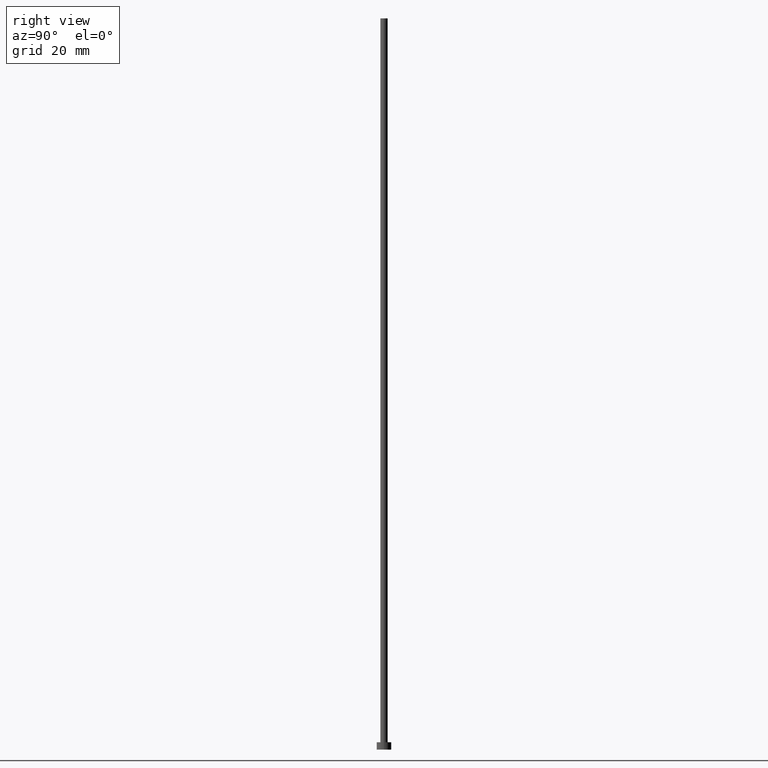
[diagram: clean part render]
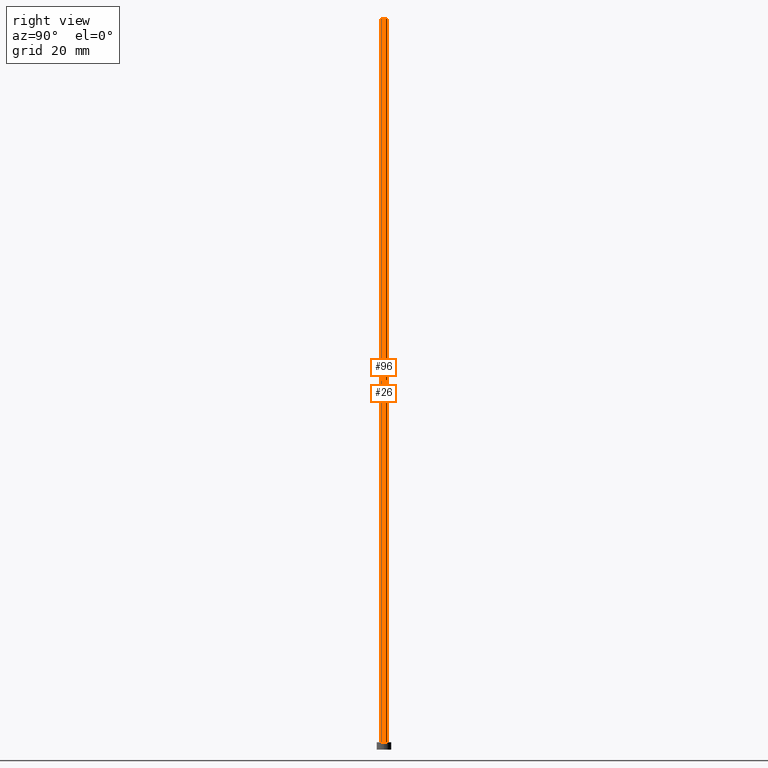
[diagram: same view with one multi-face feature highlighted, each face labeled with its STEP entity id]
A machine part, right view. The highlighted faces form ONE feature: a constant-radius fillet chain: 2 tangent blend faces with common blend radius 1 mm. The faces share edges in the B-rep.
Their STEP definitions:
[1] entity #26 (Cylinder):
#2 = EDGE_CURVE ( 'NONE', #128, #109, #250, .T. ) ;
#8 = VERTEX_POINT ( 'NONE', #203 ) ;
#17 = VECTOR ( 'NONE', #243, 1000.000000000000000 ) ;
#18 = CARTESIAN_POINT ( 'NONE',  ( 1.000000000000000000, 1.224646799147353207E-16, 200.0000000000000000 ) ) ;
#26 = ADVANCED_FACE ( 'NONE', ( #186 ), #57, .T. ) ;
#31 = ORIENTED_EDGE ( 'NONE', *, *, #227, .T. ) ;
#46 = LINE ( 'NONE', #83, #17 ) ;
#57 = CYLINDRICAL_SURFACE ( 'NONE', #89, 1.000000000000000000 ) ;
#61 = DIRECTION ( 'NONE',  ( -0.000000000000000000, -0.000000000000000000, -1.000000000000000000 ) ) ;
#78 = EDGE_CURVE ( 'NONE', #109, #8, #188, .T. ) ;
#79 = DIRECTION ( 'NONE',  ( -0.000000000000000000, -0.000000000000000000, -1.000000000000000000 ) ) ;
#80 = AXIS2_PLACEMENT_3D ( 'NONE', #171, #143, #160 ) ;
#83 = CARTESIAN_POINT ( 'NONE',  ( 1.000000000000000000, 1.224646799147353207E-16, 200.0000000000000000 ) ) ;
#84 = DIRECTION ( 'NONE',  ( -1.000000000000000000, 0.000000000000000000, 0.000000000000000000 ) ) ;
#89 = AXIS2_PLACEMENT_3D ( 'NONE', #102, #79, #84 ) ;
#97 = ORIENTED_EDGE ( 'NONE', *, *, #213, .T. ) ;
#102 = CARTESIAN_POINT ( 'NONE',  ( 0.000000000000000000, 0.000000000000000000, 200.0000000000000000 ) ) ;
#109 = VERTEX_POINT ( 'NONE', #142 ) ;
#112 = DIRECTION ( 'NONE',  ( 0.000000000000000000, 0.000000000000000000, 1.000000000000000000 ) ) ;
#128 = VERTEX_POINT ( 'NONE', #18 ) ;
#142 = CARTESIAN_POINT ( 'NONE',  ( -1.000000000000000000, 0.000000000000000000, 200.0000000000000000 ) ) ;
#143 = DIRECTION ( 'NONE',  ( 0.000000000000000000, 0.000000000000000000, 1.000000000000000000 ) ) ;
#160 = DIRECTION ( 'NONE',  ( 1.000000000000000000, 0.000000000000000000, 0.000000000000000000 ) ) ;
#168 = DIRECTION ( 'NONE',  ( 1.000000000000000000, 0.000000000000000000, 0.000000000000000000 ) ) ;
#171 = CARTESIAN_POINT ( 'NONE',  ( 0.000000000000000000, 0.000000000000000000, 200.0000000000000000 ) ) ;
#176 = ORIENTED_EDGE ( 'NONE', *, *, #2, .F. ) ;
#177 = EDGE_LOOP ( 'NONE', ( #176, #97, #31, #196 ) ) ;
#183 = CARTESIAN_POINT ( 'NONE',  ( -1.000000000000000000, 0.000000000000000000, 200.0000000000000000 ) ) ;
#186 = FACE_OUTER_BOUND ( 'NONE', #177, .T. ) ;
#188 = LINE ( 'NONE', #183, #235 ) ;
#196 = ORIENTED_EDGE ( 'NONE', *, *, #78, .F. ) ;
#197 = AXIS2_PLACEMENT_3D ( 'NONE', #210, #112, #168 ) ;
#203 = CARTESIAN_POINT ( 'NONE',  ( -1.000000000000000000, 0.000000000000000000, 2.000000000000000000 ) ) ;
#210 = CARTESIAN_POINT ( 'NONE',  ( 0.000000000000000000, 0.000000000000000000, 2.000000000000000000 ) ) ;
#213 = EDGE_CURVE ( 'NONE', #128, #236, #46, .T. ) ;
#227 = EDGE_CURVE ( 'NONE', #236, #8, #247, .T. ) ;
#228 = CARTESIAN_POINT ( 'NONE',  ( 1.000000000000000000, 1.224646799147353207E-16, 2.000000000000000000 ) ) ;
#235 = VECTOR ( 'NONE', #61, 1000.000000000000000 ) ;
#236 = VERTEX_POINT ( 'NONE', #228 ) ;
#243 = DIRECTION ( 'NONE',  ( -0.000000000000000000, -0.000000000000000000, -1.000000000000000000 ) ) ;
#247 = CIRCLE ( 'NONE', #197, 1.000000000000000000 ) ;
#250 = CIRCLE ( 'NONE', #80, 1.000000000000000000 ) ;
[2] entity #96 (Cylinder):
#8 = VERTEX_POINT ( 'NONE', #203 ) ;
#17 = VECTOR ( 'NONE', #243, 1000.000000000000000 ) ;
#18 = CARTESIAN_POINT ( 'NONE',  ( 1.000000000000000000, 1.224646799147353207E-16, 200.0000000000000000 ) ) ;
#37 = ORIENTED_EDGE ( 'NONE', *, *, #165, .T. ) ;
#38 = CARTESIAN_POINT ( 'NONE',  ( 0.000000000000000000, 0.000000000000000000, 200.0000000000000000 ) ) ;
#39 = DIRECTION ( 'NONE',  ( 0.000000000000000000, 0.000000000000000000, 1.000000000000000000 ) ) ;
#41 = DIRECTION ( 'NONE',  ( -1.000000000000000000, 0.000000000000000000, 0.000000000000000000 ) ) ;
#46 = LINE ( 'NONE', #83, #17 ) ;
#61 = DIRECTION ( 'NONE',  ( -0.000000000000000000, -0.000000000000000000, -1.000000000000000000 ) ) ;
#78 = EDGE_CURVE ( 'NONE', #109, #8, #188, .T. ) ;
#83 = CARTESIAN_POINT ( 'NONE',  ( 1.000000000000000000, 1.224646799147353207E-16, 200.0000000000000000 ) ) ;
#96 = ADVANCED_FACE ( 'NONE', ( #163 ), #181, .T. ) ;
#103 = CIRCLE ( 'NONE', #127, 1.000000000000000000 ) ;
#105 = EDGE_CURVE ( 'NONE', #109, #128, #103, .T. ) ;
#109 = VERTEX_POINT ( 'NONE', #142 ) ;
#115 = AXIS2_PLACEMENT_3D ( 'NONE', #38, #244, #41 ) ;
#117 = ORIENTED_EDGE ( 'NONE', *, *, #213, .F. ) ;
#127 = AXIS2_PLACEMENT_3D ( 'NONE', #206, #39, #253 ) ;
#128 = VERTEX_POINT ( 'NONE', #18 ) ;
#133 = ORIENTED_EDGE ( 'NONE', *, *, #78, .T. ) ;
#142 = CARTESIAN_POINT ( 'NONE',  ( -1.000000000000000000, 0.000000000000000000, 200.0000000000000000 ) ) ;
#151 = CIRCLE ( 'NONE', #219, 1.000000000000000000 ) ;
#163 = FACE_OUTER_BOUND ( 'NONE', #208, .T. ) ;
#165 = EDGE_CURVE ( 'NONE', #8, #236, #151, .T. ) ;
#181 = CYLINDRICAL_SURFACE ( 'NONE', #115, 1.000000000000000000 ) ;
#183 = CARTESIAN_POINT ( 'NONE',  ( -1.000000000000000000, 0.000000000000000000, 200.0000000000000000 ) ) ;
#185 = CARTESIAN_POINT ( 'NONE',  ( 0.000000000000000000, 0.000000000000000000, 2.000000000000000000 ) ) ;
#188 = LINE ( 'NONE', #183, #235 ) ;
#199 = ORIENTED_EDGE ( 'NONE', *, *, #105, .F. ) ;
#203 = CARTESIAN_POINT ( 'NONE',  ( -1.000000000000000000, 0.000000000000000000, 2.000000000000000000 ) ) ;
#204 = DIRECTION ( 'NONE',  ( 0.000000000000000000, 0.000000000000000000, 1.000000000000000000 ) ) ;
#205 = DIRECTION ( 'NONE',  ( 1.000000000000000000, 0.000000000000000000, 0.000000000000000000 ) ) ;
#206 = CARTESIAN_POINT ( 'NONE',  ( 0.000000000000000000, 0.000000000000000000, 200.0000000000000000 ) ) ;
#208 = EDGE_LOOP ( 'NONE', ( #117, #199, #133, #37 ) ) ;
#213 = EDGE_CURVE ( 'NONE', #128, #236, #46, .T. ) ;
#219 = AXIS2_PLACEMENT_3D ( 'NONE', #185, #204, #205 ) ;
#228 = CARTESIAN_POINT ( 'NONE',  ( 1.000000000000000000, 1.224646799147353207E-16, 2.000000000000000000 ) ) ;
#235 = VECTOR ( 'NONE', #61, 1000.000000000000000 ) ;
#236 = VERTEX_POINT ( 'NONE', #228 ) ;
#243 = DIRECTION ( 'NONE',  ( -0.000000000000000000, -0.000000000000000000, -1.000000000000000000 ) ) ;
#244 = DIRECTION ( 'NONE',  ( -0.000000000000000000, -0.000000000000000000, -1.000000000000000000 ) ) ;
#253 = DIRECTION ( 'NONE',  ( 1.000000000000000000, 0.000000000000000000, 0.000000000000000000 ) ) ;